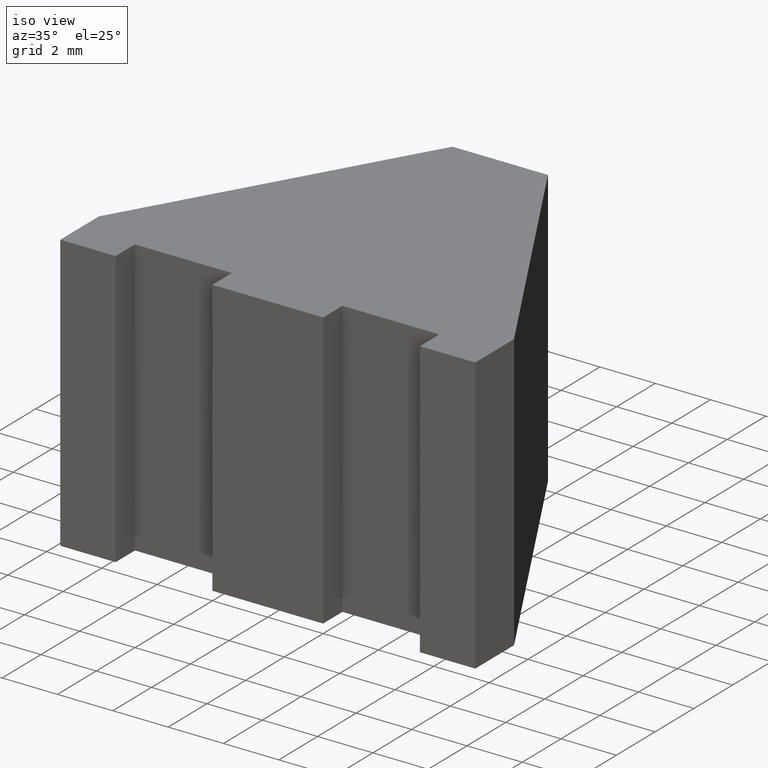
[diagram: clean part render]
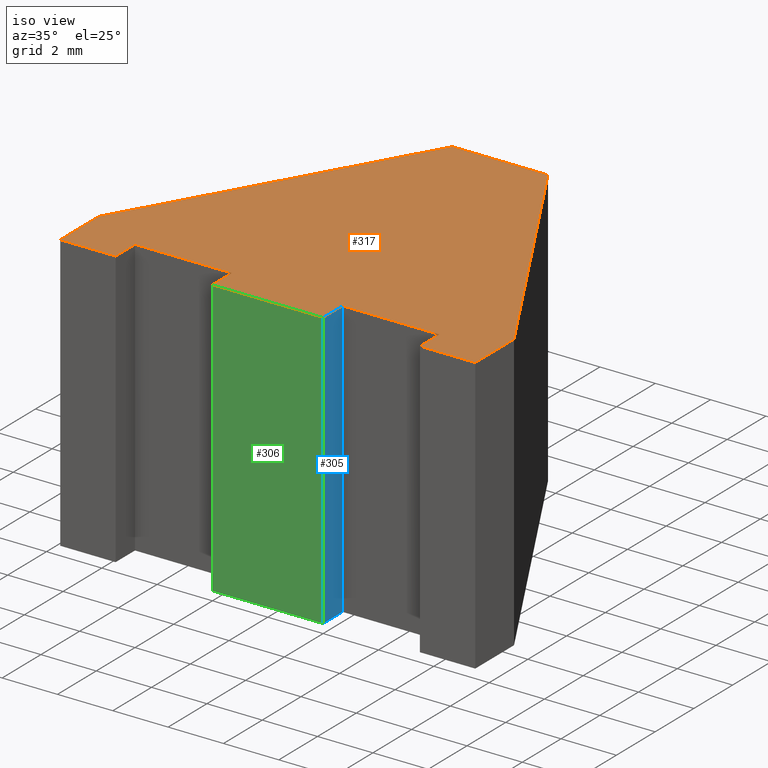
[diagram: same view with three faces highlighted in distinct colors, each labeled with its STEP entity id]
A machine part, iso view with three faces highlighted in distinct colors.
Their STEP definitions:

[orange] entity #317 — the highlighted planar face has unit normal (0, 0, 1).
#31=FACE_OUTER_BOUND('',#47,.T.);
#47=EDGE_LOOP('',(#272,#273,#274,#275,#276,#277,#278,#279,#280,#281,#282,
#283,#284,#285));
#62=LINE('',#466,#104);
#65=LINE('',#471,#107);
#67=LINE('',#475,#109);
#69=LINE('',#479,#111);
#71=LINE('',#483,#113);
#73=LINE('',#487,#115);
#75=LINE('',#491,#117);
#77=LINE('',#495,#119);
#79=LINE('',#499,#121);
#81=LINE('',#503,#123);
#83=LINE('',#507,#125);
#85=LINE('',#511,#127);
#87=LINE('',#515,#129);
#89=LINE('',#518,#131);
#104=VECTOR('',#377,10.);
#107=VECTOR('',#382,10.);
#109=VECTOR('',#386,10.);
#111=VECTOR('',#390,10.);
#113=VECTOR('',#394,10.);
#115=VECTOR('',#398,10.);
#117=VECTOR('',#402,10.);
#119=VECTOR('',#406,10.);
#121=VECTOR('',#410,10.);
#123=VECTOR('',#414,10.);
#125=VECTOR('',#418,10.);
#127=VECTOR('',#422,10.);
#129=VECTOR('',#426,10.);
#131=VECTOR('',#430,10.);
#146=VERTEX_POINT('',#464);
#147=VERTEX_POINT('',#465);
#148=VERTEX_POINT('',#470);
#149=VERTEX_POINT('',#474);
#150=VERTEX_POINT('',#478);
#151=VERTEX_POINT('',#482);
#152=VERTEX_POINT('',#486);
#153=VERTEX_POINT('',#490);
#154=VERTEX_POINT('',#494);
#155=VERTEX_POINT('',#498);
#156=VERTEX_POINT('',#502);
#157=VERTEX_POINT('',#506);
#158=VERTEX_POINT('',#510);
#159=VERTEX_POINT('',#514);
#174=EDGE_CURVE('',#146,#147,#62,.T.);
#177=EDGE_CURVE('',#147,#148,#65,.T.);
#179=EDGE_CURVE('',#148,#149,#67,.T.);
#181=EDGE_CURVE('',#149,#150,#69,.T.);
#183=EDGE_CURVE('',#150,#151,#71,.T.);
#185=EDGE_CURVE('',#151,#152,#73,.T.);
#187=EDGE_CURVE('',#152,#153,#75,.T.);
#189=EDGE_CURVE('',#153,#154,#77,.T.);
#191=EDGE_CURVE('',#154,#155,#79,.T.);
#193=EDGE_CURVE('',#155,#156,#81,.T.);
#195=EDGE_CURVE('',#156,#157,#83,.T.);
#197=EDGE_CURVE('',#157,#158,#85,.T.);
#199=EDGE_CURVE('',#158,#159,#87,.T.);
#201=EDGE_CURVE('',#159,#146,#89,.T.);
#272=ORIENTED_EDGE('',*,*,#174,.F.);
#273=ORIENTED_EDGE('',*,*,#201,.F.);
#274=ORIENTED_EDGE('',*,*,#199,.F.);
#275=ORIENTED_EDGE('',*,*,#197,.F.);
#276=ORIENTED_EDGE('',*,*,#195,.F.);
#277=ORIENTED_EDGE('',*,*,#193,.F.);
#278=ORIENTED_EDGE('',*,*,#191,.F.);
#279=ORIENTED_EDGE('',*,*,#189,.F.);
#280=ORIENTED_EDGE('',*,*,#187,.F.);
#281=ORIENTED_EDGE('',*,*,#185,.F.);
#282=ORIENTED_EDGE('',*,*,#183,.F.);
#283=ORIENTED_EDGE('',*,*,#181,.F.);
#284=ORIENTED_EDGE('',*,*,#179,.F.);
#285=ORIENTED_EDGE('',*,*,#177,.F.);
#301=PLANE('',#356);
#317=ADVANCED_FACE('',(#31),#301,.T.);
#356=AXIS2_PLACEMENT_3D('',#519,#431,#432);
#377=DIRECTION('',(0.,1.,0.));
#382=DIRECTION('',(-1.,-1.58603289232165E-16,0.));
#386=DIRECTION('',(-5.55111512312578E-16,-1.,0.));
#390=DIRECTION('',(-1.,0.,0.));
#394=DIRECTION('',(-5.55111512312578E-16,1.,0.));
#398=DIRECTION('',(-1.,7.93016446160826E-17,0.));
#402=DIRECTION('',(0.,-1.,0.));
#406=DIRECTION('',(-1.,0.,0.));
#410=DIRECTION('',(0.,1.,0.));
#414=DIRECTION('',(0.5,0.866025403784439,0.));
#418=DIRECTION('',(1.,0.,0.));
#422=DIRECTION('',(0.5,-0.866025403784439,0.));
#426=DIRECTION('',(0.,-1.,0.));
#430=DIRECTION('',(-1.,0.,0.));
#431=DIRECTION('center_axis',(0.,0.,1.));
#432=DIRECTION('ref_axis',(1.,0.,0.));
#464=CARTESIAN_POINT('',(5.5,0.,5.));
#465=CARTESIAN_POINT('',(5.5,1.,5.));
#466=CARTESIAN_POINT('',(5.5,0.,5.));
#470=CARTESIAN_POINT('',(2.,1.,5.));
#471=CARTESIAN_POINT('',(5.5,1.,5.));
#474=CARTESIAN_POINT('',(2.,0.,5.));
#475=CARTESIAN_POINT('',(2.,1.,5.));
#478=CARTESIAN_POINT('',(-2.,0.,5.));
#479=CARTESIAN_POINT('',(2.,0.,5.));
#482=CARTESIAN_POINT('',(-2.,1.,5.));
#483=CARTESIAN_POINT('',(-2.,0.,5.));
#486=CARTESIAN_POINT('',(-5.5,1.,5.));
#487=CARTESIAN_POINT('',(-2.,1.,5.));
#490=CARTESIAN_POINT('',(-5.5,0.,5.));
#491=CARTESIAN_POINT('',(-5.5,1.,5.));
#494=CARTESIAN_POINT('',(-7.5,0.,5.));
#495=CARTESIAN_POINT('',(-5.5,0.,5.));
#498=CARTESIAN_POINT('',(-7.5,2.,5.));
#499=CARTESIAN_POINT('',(-7.5,0.,5.));
#502=CARTESIAN_POINT('',(-1.72649730810374,12.,5.));
#503=CARTESIAN_POINT('',(-7.5,2.,5.));
#506=CARTESIAN_POINT('',(1.72649730810374,12.,5.));
#507=CARTESIAN_POINT('',(-1.72649730810374,12.,5.));
#510=CARTESIAN_POINT('',(7.5,2.,5.));
#511=CARTESIAN_POINT('',(1.72649730810374,12.,5.));
#514=CARTESIAN_POINT('',(7.5,0.,5.));
#515=CARTESIAN_POINT('',(7.5,2.,5.));
#518=CARTESIAN_POINT('',(7.5,0.,5.));
#519=CARTESIAN_POINT('Origin',(-1.38777878078145E-16,4.36139397514975,5.));

[blue] entity #305 — the highlighted planar face has unit normal (1, -0, 0).
#19=FACE_OUTER_BOUND('',#35,.T.);
#35=EDGE_LOOP('',(#224,#225,#226,#227));
#52=LINE('',#445,#94);
#66=LINE('',#472,#108);
#67=LINE('',#475,#109);
#68=LINE('',#476,#110);
#94=VECTOR('',#365,10.);
#108=VECTOR('',#383,10.);
#109=VECTOR('',#386,10.);
#110=VECTOR('',#387,10.);
#136=VERTEX_POINT('',#442);
#137=VERTEX_POINT('',#444);
#148=VERTEX_POINT('',#470);
#149=VERTEX_POINT('',#474);
#164=EDGE_CURVE('',#137,#136,#52,.T.);
#178=EDGE_CURVE('',#148,#136,#66,.T.);
#179=EDGE_CURVE('',#148,#149,#67,.T.);
#180=EDGE_CURVE('',#149,#137,#68,.T.);
#224=ORIENTED_EDGE('',*,*,#179,.T.);
#225=ORIENTED_EDGE('',*,*,#180,.T.);
#226=ORIENTED_EDGE('',*,*,#164,.T.);
#227=ORIENTED_EDGE('',*,*,#178,.F.);
#289=PLANE('',#344);
#305=ADVANCED_FACE('',(#19),#289,.T.);
#344=AXIS2_PLACEMENT_3D('',#473,#384,#385);
#365=DIRECTION('',(5.55111512312578E-16,1.,0.));
#383=DIRECTION('',(0.,0.,-1.));
#384=DIRECTION('center_axis',(1.,-5.55111512312578E-16,0.));
#385=DIRECTION('ref_axis',(0.,0.,-1.));
#386=DIRECTION('',(-5.55111512312578E-16,-1.,0.));
#387=DIRECTION('',(0.,0.,-1.));
#442=CARTESIAN_POINT('',(2.,1.,-5.));
#444=CARTESIAN_POINT('',(2.,0.,-5.));
#445=CARTESIAN_POINT('',(2.,1.,-5.));
#470=CARTESIAN_POINT('',(2.,1.,5.));
#472=CARTESIAN_POINT('',(2.,1.,0.));
#473=CARTESIAN_POINT('Origin',(2.,1.,0.));
#474=CARTESIAN_POINT('',(2.,0.,5.));
#475=CARTESIAN_POINT('',(2.,1.,5.));
#476=CARTESIAN_POINT('',(2.,0.,0.));

[green] entity #306 — the highlighted planar face has unit normal (0, -1, 0).
#20=FACE_OUTER_BOUND('',#36,.T.);
#36=EDGE_LOOP('',(#228,#229,#230,#231));
#53=LINE('',#447,#95);
#68=LINE('',#476,#110);
#69=LINE('',#479,#111);
#70=LINE('',#480,#112);
#95=VECTOR('',#366,10.);
#110=VECTOR('',#387,10.);
#111=VECTOR('',#390,10.);
#112=VECTOR('',#391,10.);
#137=VERTEX_POINT('',#444);
#138=VERTEX_POINT('',#446);
#149=VERTEX_POINT('',#474);
#150=VERTEX_POINT('',#478);
#165=EDGE_CURVE('',#138,#137,#53,.T.);
#180=EDGE_CURVE('',#149,#137,#68,.T.);
#181=EDGE_CURVE('',#149,#150,#69,.T.);
#182=EDGE_CURVE('',#150,#138,#70,.T.);
#228=ORIENTED_EDGE('',*,*,#181,.T.);
#229=ORIENTED_EDGE('',*,*,#182,.T.);
#230=ORIENTED_EDGE('',*,*,#165,.T.);
#231=ORIENTED_EDGE('',*,*,#180,.F.);
#290=PLANE('',#345);
#306=ADVANCED_FACE('',(#20),#290,.T.);
#345=AXIS2_PLACEMENT_3D('',#477,#388,#389);
#366=DIRECTION('',(1.,0.,0.));
#387=DIRECTION('',(0.,0.,-1.));
#388=DIRECTION('center_axis',(0.,-1.,0.));
#389=DIRECTION('ref_axis',(0.,0.,-1.));
#390=DIRECTION('',(-1.,0.,0.));
#391=DIRECTION('',(0.,0.,-1.));
#444=CARTESIAN_POINT('',(2.,0.,-5.));
#446=CARTESIAN_POINT('',(-2.,0.,-5.));
#447=CARTESIAN_POINT('',(2.,0.,-5.));
#474=CARTESIAN_POINT('',(2.,0.,5.));
#476=CARTESIAN_POINT('',(2.,0.,0.));
#477=CARTESIAN_POINT('Origin',(2.,0.,0.));
#478=CARTESIAN_POINT('',(-2.,0.,5.));
#479=CARTESIAN_POINT('',(2.,0.,5.));
#480=CARTESIAN_POINT('',(-2.,0.,0.));